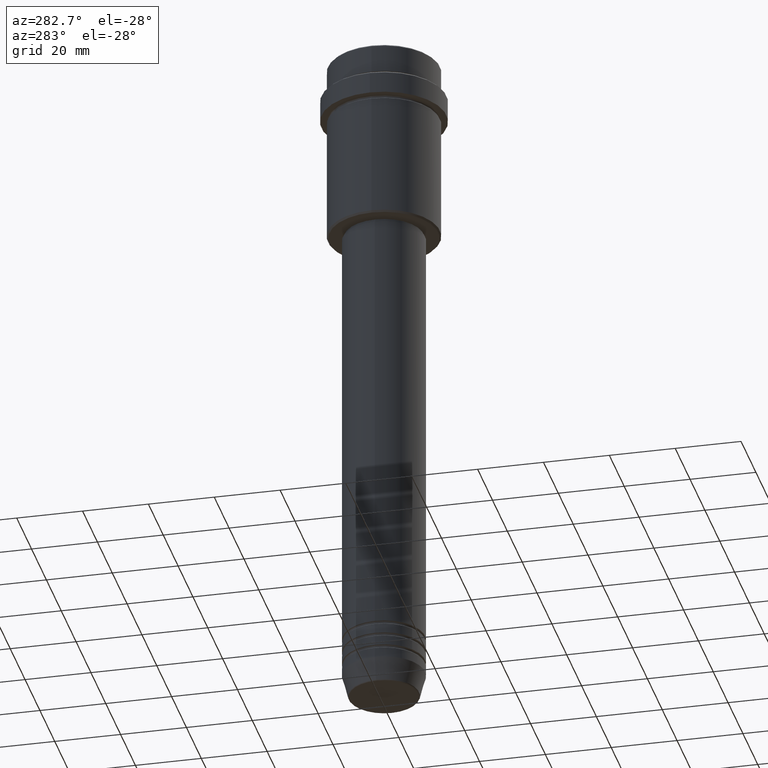
[diagram: clean part render]
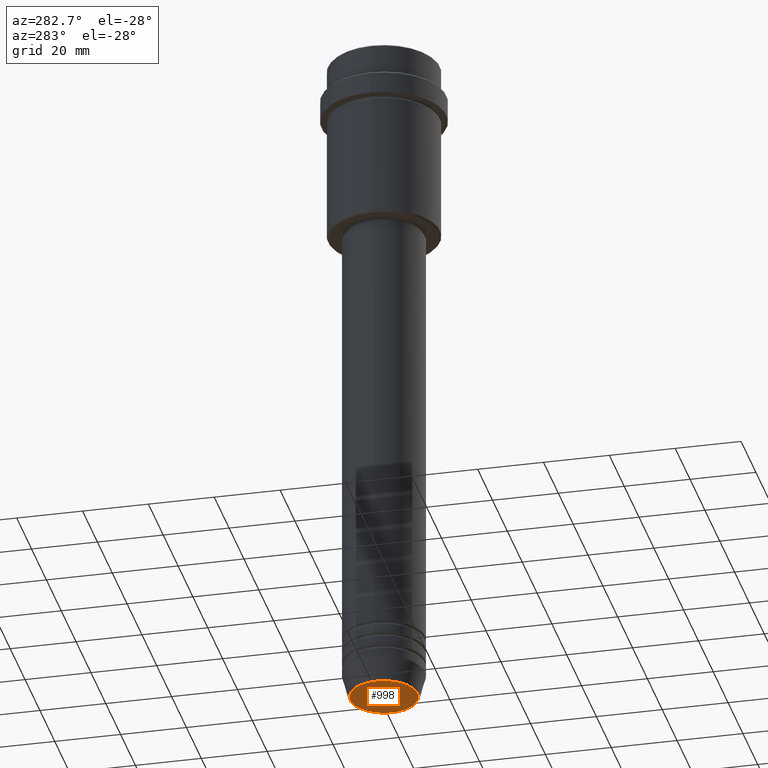
[diagram: same view with one face highlighted and labeled with its STEP entity id]
A machine part, auxiliary view. The second image highlights one B-rep face of the part: STEP entity #998.
In plain terms, the highlighted planar face has unit normal (0, -0, 1).
Its self-contained STEP definition (entity closure, byte-faithful):
#51 = VERTEX_POINT ( 'NONE', #283 ) ;
#170 = DIRECTION ( 'NONE',  ( 1.000000000000000000, 0.000000000000000000, 0.000000000000000000 ) ) ;
#230 = EDGE_CURVE ( 'NONE', #51, #557, #277, .T. ) ;
#234 = AXIS2_PLACEMENT_3D ( 'NONE', #766, #1208, #886 ) ;
#277 = CIRCLE ( 'NONE', #1079, 10.24069215899265828 ) ;
#283 = CARTESIAN_POINT ( 'NONE',  ( 10.24069215899265828, 0.000000000000000000, -210.0000000000000284 ) ) ;
#396 = CARTESIAN_POINT ( 'NONE',  ( -10.24069215899265828, 1.283696036640842178E-15, -210.0000000000000284 ) ) ;
#419 = DIRECTION ( 'NONE',  ( 0.000000000000000000, 0.000000000000000000, -1.000000000000000000 ) ) ;
#427 = ORIENTED_EDGE ( 'NONE', *, *, #820, .T. ) ;
#544 = ORIENTED_EDGE ( 'NONE', *, *, #230, .T. ) ;
#557 = VERTEX_POINT ( 'NONE', #396 ) ;
#658 = AXIS2_PLACEMENT_3D ( 'NONE', #738, #1181, #170 ) ;
#705 = CIRCLE ( 'NONE', #234, 10.24069215899265828 ) ;
#732 = FACE_OUTER_BOUND ( 'NONE', #1180, .T. ) ;
#738 = CARTESIAN_POINT ( 'NONE',  ( 0.000000000000000000, 0.000000000000000000, -210.0000000000000284 ) ) ;
#766 = CARTESIAN_POINT ( 'NONE',  ( 0.000000000000000000, 0.000000000000000000, -210.0000000000000284 ) ) ;
#820 = EDGE_CURVE ( 'NONE', #557, #51, #705, .T. ) ;
#865 = DIRECTION ( 'NONE',  ( 1.000000000000000000, 0.000000000000000000, 0.000000000000000000 ) ) ;
#886 = DIRECTION ( 'NONE',  ( 1.000000000000000000, 0.000000000000000000, 0.000000000000000000 ) ) ;
#998 = ADVANCED_FACE ( 'NONE', ( #732 ), #1157, .F. ) ;
#1079 = AXIS2_PLACEMENT_3D ( 'NONE', #1412, #419, #865 ) ;
#1157 = PLANE ( 'NONE',  #658 ) ;
#1180 = EDGE_LOOP ( 'NONE', ( #544, #427 ) ) ;
#1181 = DIRECTION ( 'NONE',  ( 0.000000000000000000, -0.000000000000000000, 1.000000000000000000 ) ) ;
#1208 = DIRECTION ( 'NONE',  ( 0.000000000000000000, 0.000000000000000000, -1.000000000000000000 ) ) ;
#1412 = CARTESIAN_POINT ( 'NONE',  ( 0.000000000000000000, 0.000000000000000000, -210.0000000000000284 ) ) ;